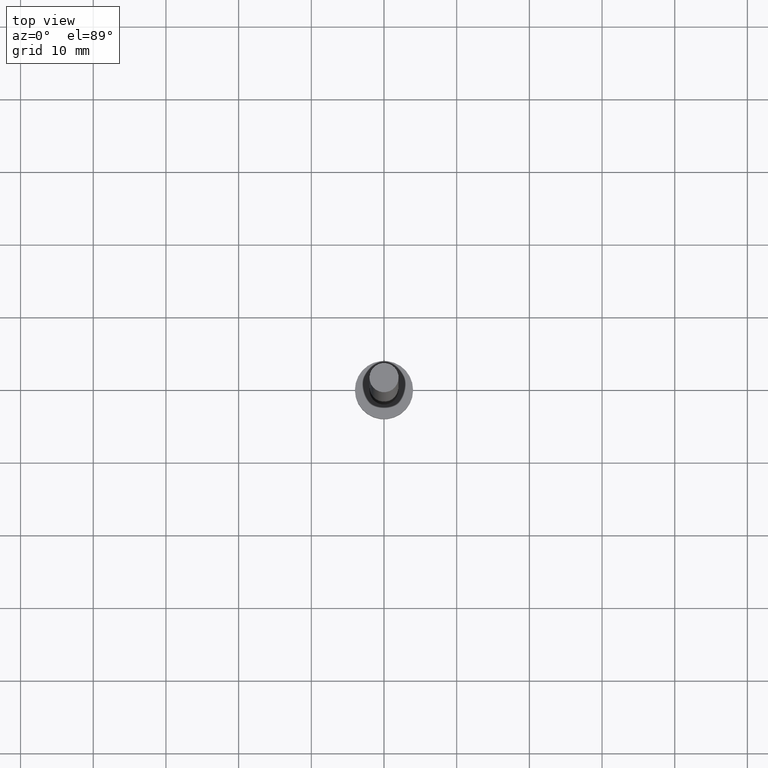
[diagram: clean part render]
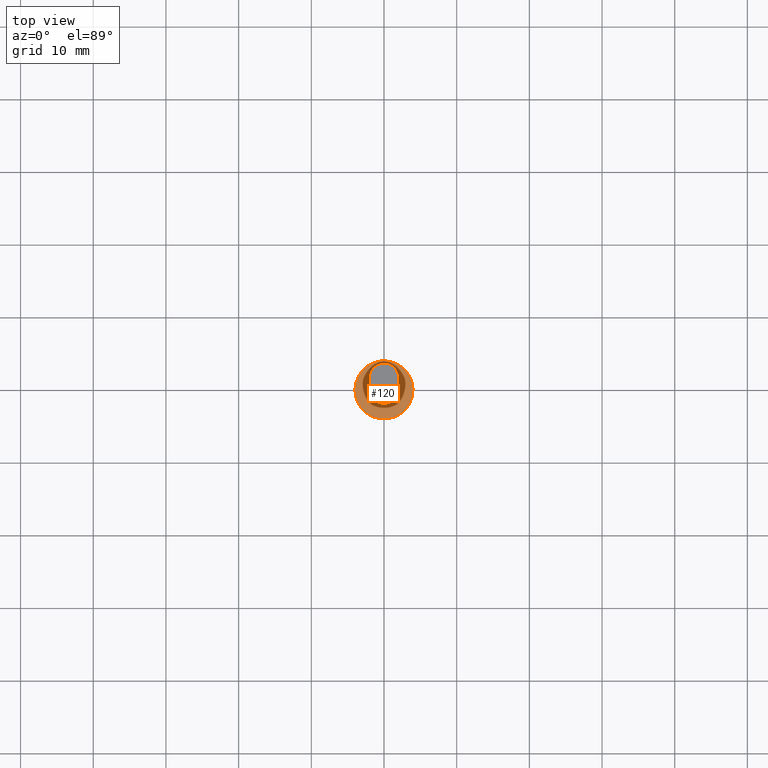
[diagram: same view with one face highlighted and labeled with its STEP entity id]
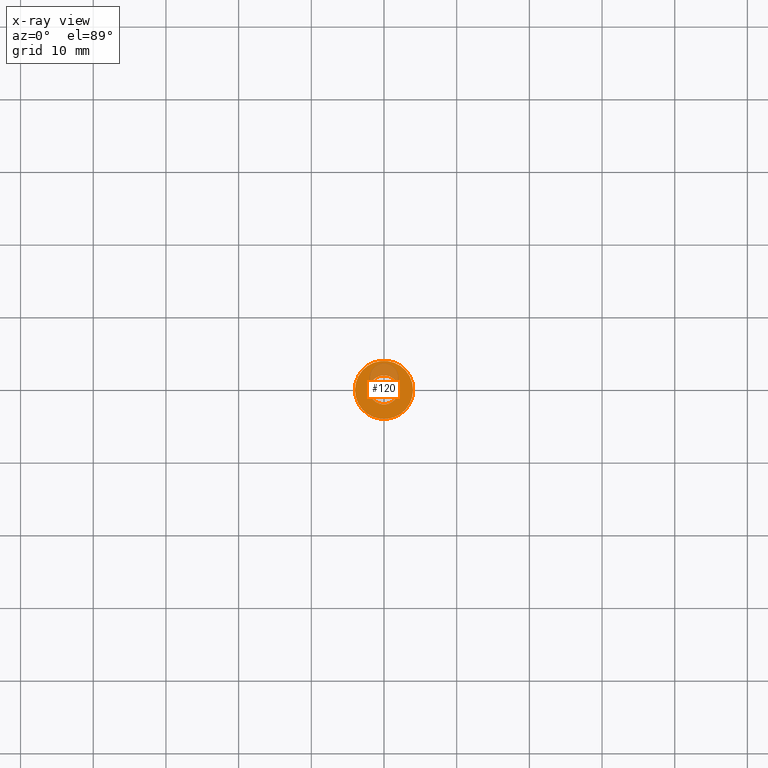
[diagram: x-ray of the same camera — body ghosted, the highlighted face saturated]
A machine part, top view. The second image highlights one B-rep face of the part: STEP entity #120.
The next image is the same camera in x-ray: the body ghosted, the highlighted face saturated — about 18% of this face is hidden behind the body in this view.
In plain terms, the highlighted planar face has unit normal (0, 0, 1).
Its self-contained STEP definition (entity closure, byte-faithful):
#1 = DIRECTION ( 'NONE',  ( 1.000000000000000000, 0.000000000000000000, -0.000000000000000000 ) ) ;
#3 = DIRECTION ( 'NONE',  ( 1.000000000000000000, 0.000000000000000000, 0.000000000000000000 ) ) ;
#6 = AXIS2_PLACEMENT_3D ( 'NONE', #87, #191, #193 ) ;
#20 = VERTEX_POINT ( 'NONE', #133 ) ;
#25 = ORIENTED_EDGE ( 'NONE', *, *, #217, .T. ) ;
#28 = ORIENTED_EDGE ( 'NONE', *, *, #206, .F. ) ;
#36 = CIRCLE ( 'NONE', #153, 2.000000000000000000 ) ;
#40 = CARTESIAN_POINT ( 'NONE',  ( 2.000000000000000000, 2.449293598294705921E-16, 3.000000000000000000 ) ) ;
#42 = AXIS2_PLACEMENT_3D ( 'NONE', #174, #171, #1 ) ;
#59 = PLANE ( 'NONE',  #42 ) ;
#73 = FACE_OUTER_BOUND ( 'NONE', #178, .T. ) ;
#75 = DIRECTION ( 'NONE',  ( 0.000000000000000000, 0.000000000000000000, 1.000000000000000000 ) ) ;
#84 = EDGE_CURVE ( 'NONE', #221, #122, #157, .T. ) ;
#87 = CARTESIAN_POINT ( 'NONE',  ( 0.000000000000000000, 0.000000000000000000, 3.000000000000000000 ) ) ;
#104 = EDGE_CURVE ( 'NONE', #225, #20, #36, .T. ) ;
#108 = CIRCLE ( 'NONE', #6, 4.000000000000000000 ) ;
#120 = ADVANCED_FACE ( 'NONE', ( #255, #73 ), #59, .T. ) ;
#122 = VERTEX_POINT ( 'NONE', #237 ) ;
#123 = AXIS2_PLACEMENT_3D ( 'NONE', #187, #75, #154 ) ;
#133 = CARTESIAN_POINT ( 'NONE',  ( -2.000000000000000000, 0.000000000000000000, 3.000000000000000000 ) ) ;
#136 = CARTESIAN_POINT ( 'NONE',  ( 0.000000000000000000, 0.000000000000000000, 3.000000000000000000 ) ) ;
#139 = ORIENTED_EDGE ( 'NONE', *, *, #84, .T. ) ;
#151 = AXIS2_PLACEMENT_3D ( 'NONE', #199, #179, #3 ) ;
#153 = AXIS2_PLACEMENT_3D ( 'NONE', #136, #212, #169 ) ;
#154 = DIRECTION ( 'NONE',  ( 1.000000000000000000, 0.000000000000000000, 0.000000000000000000 ) ) ;
#156 = CARTESIAN_POINT ( 'NONE',  ( -4.000000000000000000, 0.000000000000000000, 3.000000000000000000 ) ) ;
#157 = CIRCLE ( 'NONE', #123, 4.000000000000000000 ) ;
#166 = EDGE_LOOP ( 'NONE', ( #28, #220 ) ) ;
#169 = DIRECTION ( 'NONE',  ( 1.000000000000000000, 0.000000000000000000, 0.000000000000000000 ) ) ;
#171 = DIRECTION ( 'NONE',  ( 0.000000000000000000, 0.000000000000000000, 1.000000000000000000 ) ) ;
#174 = CARTESIAN_POINT ( 'NONE',  ( 0.000000000000000000, 0.000000000000000000, 3.000000000000000000 ) ) ;
#178 = EDGE_LOOP ( 'NONE', ( #139, #25 ) ) ;
#179 = DIRECTION ( 'NONE',  ( 0.000000000000000000, 0.000000000000000000, 1.000000000000000000 ) ) ;
#187 = CARTESIAN_POINT ( 'NONE',  ( 0.000000000000000000, 0.000000000000000000, 3.000000000000000000 ) ) ;
#191 = DIRECTION ( 'NONE',  ( 0.000000000000000000, 0.000000000000000000, 1.000000000000000000 ) ) ;
#193 = DIRECTION ( 'NONE',  ( 1.000000000000000000, 0.000000000000000000, 0.000000000000000000 ) ) ;
#199 = CARTESIAN_POINT ( 'NONE',  ( 0.000000000000000000, 0.000000000000000000, 3.000000000000000000 ) ) ;
#206 = EDGE_CURVE ( 'NONE', #20, #225, #229, .T. ) ;
#212 = DIRECTION ( 'NONE',  ( 0.000000000000000000, 0.000000000000000000, 1.000000000000000000 ) ) ;
#217 = EDGE_CURVE ( 'NONE', #122, #221, #108, .T. ) ;
#220 = ORIENTED_EDGE ( 'NONE', *, *, #104, .F. ) ;
#221 = VERTEX_POINT ( 'NONE', #156 ) ;
#225 = VERTEX_POINT ( 'NONE', #40 ) ;
#229 = CIRCLE ( 'NONE', #151, 2.000000000000000000 ) ;
#237 = CARTESIAN_POINT ( 'NONE',  ( 4.000000000000000000, 4.898587196589412829E-16, 3.000000000000000000 ) ) ;
#255 = FACE_BOUND ( 'NONE', #166, .T. ) ;